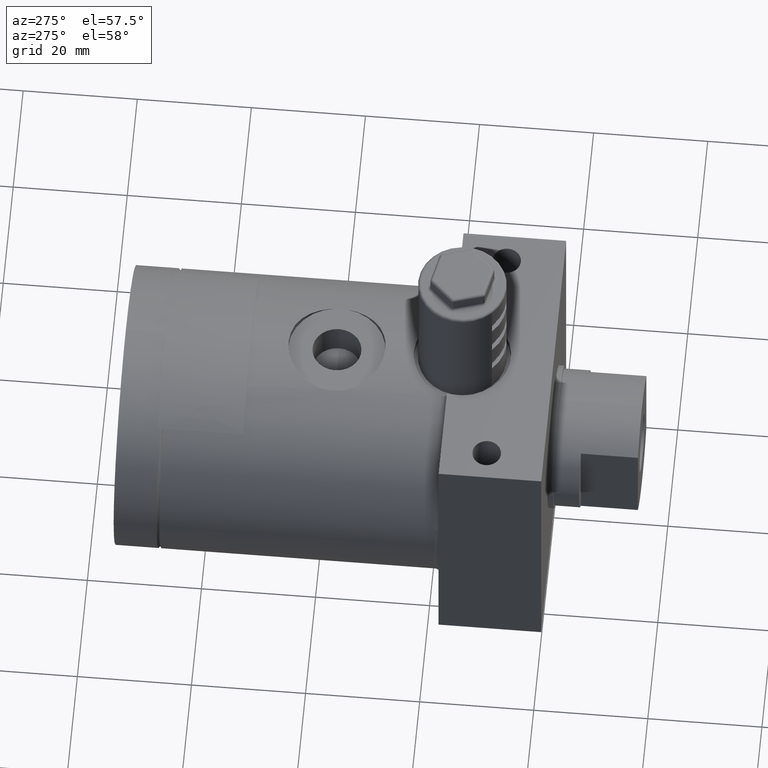
[diagram: clean part render]
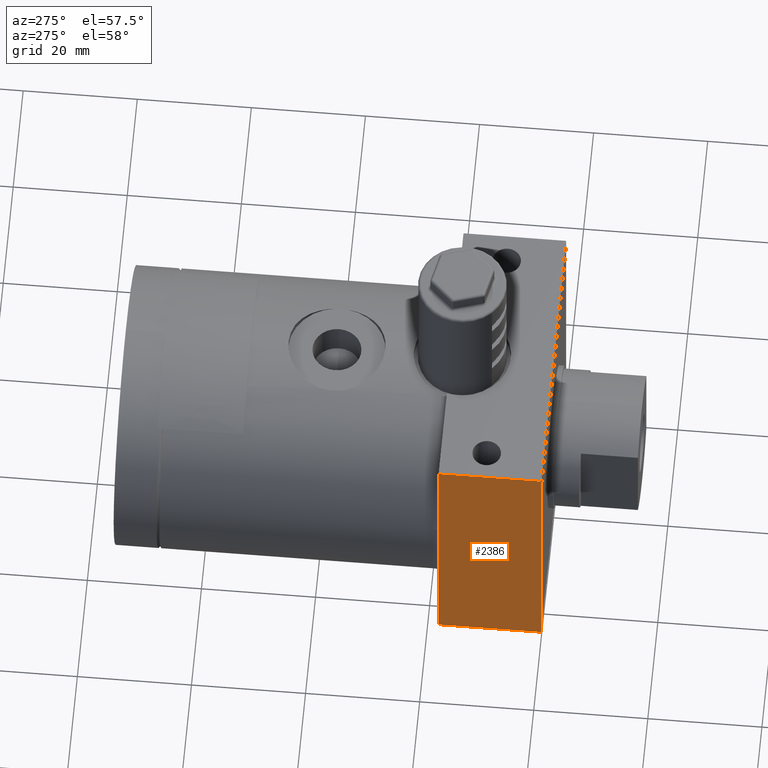
[diagram: same view with one face highlighted and labeled with its STEP entity id]
A machine part, auxiliary view. The second image highlights one B-rep face of the part: STEP entity #2386.
In plain terms, the highlighted planar face has unit normal (1, 0, -0).
Its self-contained STEP definition (entity closure, byte-faithful):
#49 = EDGE_LOOP ( 'NONE', ( #302, #9574, #7257, #5795, #4715, #341 ) ) ;
#86 = EDGE_CURVE ( 'NONE', #8427, #3315, #4101, .T. ) ;
#271 = CARTESIAN_POINT ( 'NONE',  ( -25.00000000000000000, 18.00000000000000000, -24.50000000000000000 ) ) ;
#302 = ORIENTED_EDGE ( 'NONE', *, *, #6008, .F. ) ;
#341 = ORIENTED_EDGE ( 'NONE', *, *, #2825, .F. ) ;
#703 = CARTESIAN_POINT ( 'NONE',  ( -25.00000000000000000, 18.00000000000000000, -24.50000000000000000 ) ) ;
#778 = CARTESIAN_POINT ( 'NONE',  ( -25.00000000000000000, 18.00000000000000000, 5.024937810560450300 ) ) ;
#945 = LINE ( 'NONE', #703, #10158 ) ;
#1596 = DIRECTION ( 'NONE',  ( 2.124151195073639800E-016, 0.0000000000000000000, 1.000000000000000000 ) ) ;
#2375 = DIRECTION ( 'NONE',  ( 2.124151195073639800E-016, 0.0000000000000000000, 1.000000000000000000 ) ) ;
#2386 = ADVANCED_FACE ( 'NONE', ( #10200 ), #8382, .F. ) ;
#2691 = CARTESIAN_POINT ( 'NONE',  ( -25.00000000000000000, 18.00000000000000000, 24.50000000000000000 ) ) ;
#2825 = EDGE_CURVE ( 'NONE', #8352, #4213, #6126, .T. ) ;
#2864 = CARTESIAN_POINT ( 'NONE',  ( -25.00000000000000000, 0.0000000000000000000, -24.50000000000000000 ) ) ;
#3191 = CARTESIAN_POINT ( 'NONE',  ( -25.00000000000000000, 0.0000000000000000000, -24.50000000000000000 ) ) ;
#3315 = VERTEX_POINT ( 'NONE', #10056 ) ;
#3919 = VECTOR ( 'NONE', #6883, 1000.000000000000000 ) ;
#4029 = DIRECTION ( 'NONE',  ( 0.0000000000000000000, -1.000000000000000000, 0.0000000000000000000 ) ) ;
#4101 = LINE ( 'NONE', #3191, #6747 ) ;
#4169 = EDGE_CURVE ( 'NONE', #4213, #10117, #945, .T. ) ;
#4213 = VERTEX_POINT ( 'NONE', #778 ) ;
#4245 = DIRECTION ( 'NONE',  ( 1.000000000000000000, 0.0000000000000000000, -2.124151195073639800E-016 ) ) ;
#4357 = LINE ( 'NONE', #10784, #10653 ) ;
#4715 = ORIENTED_EDGE ( 'NONE', *, *, #4169, .F. ) ;
#4723 = CARTESIAN_POINT ( 'NONE',  ( -25.00000000000000000, 18.00000000000000000, -5.024937810560440500 ) ) ;
#4817 = LINE ( 'NONE', #9074, #10712 ) ;
#5060 = CARTESIAN_POINT ( 'NONE',  ( -25.00000000000000000, 67.00000000000000000, -24.50000000000000000 ) ) ;
#5082 = EDGE_CURVE ( 'NONE', #9321, #8427, #4357, .T. ) ;
#5795 = ORIENTED_EDGE ( 'NONE', *, *, #9031, .F. ) ;
#5987 = VECTOR ( 'NONE', #1596, 1000.000000000000000 ) ;
#6008 = EDGE_CURVE ( 'NONE', #9321, #8352, #8928, .T. ) ;
#6126 = LINE ( 'NONE', #10803, #5987 ) ;
#6747 = VECTOR ( 'NONE', #2375, 1000.000000000000000 ) ;
#6883 = DIRECTION ( 'NONE',  ( 2.124151195073639800E-016, 0.0000000000000000000, 1.000000000000000000 ) ) ;
#7257 = ORIENTED_EDGE ( 'NONE', *, *, #86, .T. ) ;
#7486 = CARTESIAN_POINT ( 'NONE',  ( -25.00000000000000000, 18.00000000000000000, -24.50000000000000000 ) ) ;
#8253 = DIRECTION ( 'NONE',  ( 2.124151195073639800E-016, 0.0000000000000000000, 1.000000000000000000 ) ) ;
#8352 = VERTEX_POINT ( 'NONE', #4723 ) ;
#8382 = PLANE ( 'NONE',  #10301 ) ;
#8427 = VERTEX_POINT ( 'NONE', #2864 ) ;
#8928 = LINE ( 'NONE', #271, #3919 ) ;
#9031 = EDGE_CURVE ( 'NONE', #10117, #3315, #4817, .T. ) ;
#9074 = CARTESIAN_POINT ( 'NONE',  ( -25.00000000000000000, 67.00000000000000000, 24.50000000000000000 ) ) ;
#9321 = VERTEX_POINT ( 'NONE', #7486 ) ;
#9574 = ORIENTED_EDGE ( 'NONE', *, *, #5082, .T. ) ;
#10056 = CARTESIAN_POINT ( 'NONE',  ( -25.00000000000000000, 0.0000000000000000000, 24.50000000000000000 ) ) ;
#10117 = VERTEX_POINT ( 'NONE', #2691 ) ;
#10125 = DIRECTION ( 'NONE',  ( -2.124151195073639800E-016, 0.0000000000000000000, -1.000000000000000000 ) ) ;
#10158 = VECTOR ( 'NONE', #8253, 1000.000000000000000 ) ;
#10200 = FACE_OUTER_BOUND ( 'NONE', #49, .T. ) ;
#10301 = AXIS2_PLACEMENT_3D ( 'NONE', #5060, #4245, #10125 ) ;
#10653 = VECTOR ( 'NONE', #10856, 1000.000000000000000 ) ;
#10712 = VECTOR ( 'NONE', #4029, 1000.000000000000000 ) ;
#10784 = CARTESIAN_POINT ( 'NONE',  ( -25.00000000000000000, 67.00000000000000000, -24.50000000000000000 ) ) ;
#10803 = CARTESIAN_POINT ( 'NONE',  ( -25.00000000000000000, 18.00000000000000000, -24.50000000000000000 ) ) ;
#10856 = DIRECTION ( 'NONE',  ( 0.0000000000000000000, -1.000000000000000000, 0.0000000000000000000 ) ) ;